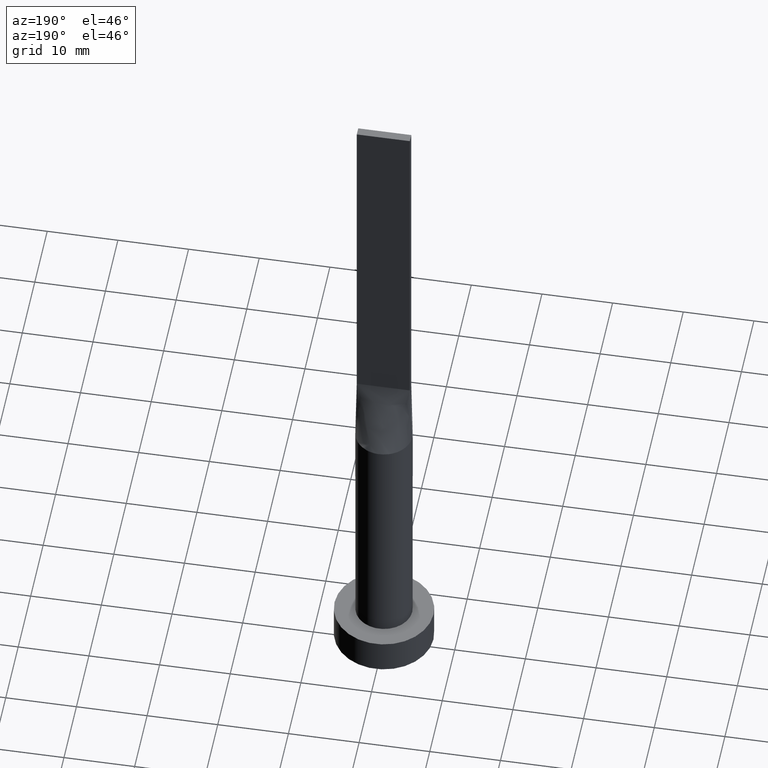
[diagram: clean part render]
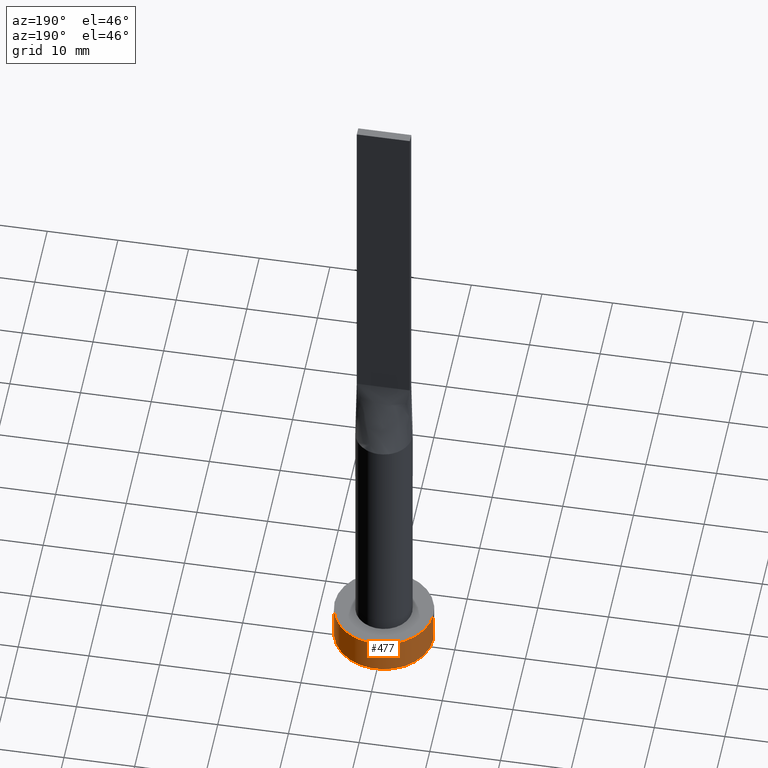
[diagram: same view with one face highlighted and labeled with its STEP entity id]
A machine part, auxiliary view. The second image highlights one B-rep face of the part: STEP entity #477.
In plain terms, the highlighted cylindrical surface (partial cylindrical patch) has radius 7 mm, axis along (-0, -0, -1).
Its self-contained STEP definition (entity closure, byte-faithful):
#15 = CIRCLE ( 'NONE', #56, 7.000000000000000000 ) ;
#16 = VERTEX_POINT ( 'NONE', #352 ) ;
#37 = CARTESIAN_POINT ( 'NONE',  ( 7.000000000000000000, 8.572527594031473190E-16, 0.000000000000000000 ) ) ;
#43 = AXIS2_PLACEMENT_3D ( 'NONE', #79, #415, #539 ) ;
#56 = AXIS2_PLACEMENT_3D ( 'NONE', #223, #271, #455 ) ;
#79 = CARTESIAN_POINT ( 'NONE',  ( 0.000000000000000000, 0.000000000000000000, 0.000000000000000000 ) ) ;
#95 = LINE ( 'NONE', #405, #373 ) ;
#111 = CARTESIAN_POINT ( 'NONE',  ( -7.000000000000000000, 0.000000000000000000, 5.000000000000000000 ) ) ;
#114 = CYLINDRICAL_SURFACE ( 'NONE', #262, 7.000000000000000000 ) ;
#157 = DIRECTION ( 'NONE',  ( -0.000000000000000000, -0.000000000000000000, -1.000000000000000000 ) ) ;
#160 = FACE_OUTER_BOUND ( 'NONE', #506, .T. ) ;
#161 = EDGE_CURVE ( 'NONE', #414, #556, #261, .T. ) ;
#201 = DIRECTION ( 'NONE',  ( -1.000000000000000000, 0.000000000000000000, 0.000000000000000000 ) ) ;
#203 = DIRECTION ( 'NONE',  ( -0.000000000000000000, -0.000000000000000000, -1.000000000000000000 ) ) ;
#223 = CARTESIAN_POINT ( 'NONE',  ( 0.000000000000000000, 0.000000000000000000, 5.000000000000000000 ) ) ;
#247 = ORIENTED_EDGE ( 'NONE', *, *, #546, .F. ) ;
#256 = CARTESIAN_POINT ( 'NONE',  ( 7.000000000000000000, 8.572527594031473190E-16, 5.000000000000000000 ) ) ;
#261 = CIRCLE ( 'NONE', #43, 7.000000000000000000 ) ;
#262 = AXIS2_PLACEMENT_3D ( 'NONE', #328, #203, #201 ) ;
#271 = DIRECTION ( 'NONE',  ( 0.000000000000000000, 0.000000000000000000, 1.000000000000000000 ) ) ;
#283 = ORIENTED_EDGE ( 'NONE', *, *, #384, .F. ) ;
#318 = DIRECTION ( 'NONE',  ( -0.000000000000000000, -0.000000000000000000, -1.000000000000000000 ) ) ;
#328 = CARTESIAN_POINT ( 'NONE',  ( 0.000000000000000000, 0.000000000000000000, 5.000000000000000000 ) ) ;
#352 = CARTESIAN_POINT ( 'NONE',  ( -7.000000000000000000, 0.000000000000000000, 5.000000000000000000 ) ) ;
#373 = VECTOR ( 'NONE', #318, 1000.000000000000000 ) ;
#384 = EDGE_CURVE ( 'NONE', #16, #556, #509, .T. ) ;
#405 = CARTESIAN_POINT ( 'NONE',  ( 7.000000000000000000, 8.572527594031473190E-16, 5.000000000000000000 ) ) ;
#412 = CARTESIAN_POINT ( 'NONE',  ( -7.000000000000000000, 0.000000000000000000, 0.000000000000000000 ) ) ;
#414 = VERTEX_POINT ( 'NONE', #37 ) ;
#415 = DIRECTION ( 'NONE',  ( 0.000000000000000000, 0.000000000000000000, 1.000000000000000000 ) ) ;
#455 = DIRECTION ( 'NONE',  ( 1.000000000000000000, 0.000000000000000000, 0.000000000000000000 ) ) ;
#458 = VERTEX_POINT ( 'NONE', #256 ) ;
#477 = ADVANCED_FACE ( 'NONE', ( #160 ), #114, .T. ) ;
#506 = EDGE_LOOP ( 'NONE', ( #247, #550, #526, #283 ) ) ;
#509 = LINE ( 'NONE', #111, #578 ) ;
#526 = ORIENTED_EDGE ( 'NONE', *, *, #161, .T. ) ;
#539 = DIRECTION ( 'NONE',  ( 1.000000000000000000, 0.000000000000000000, 0.000000000000000000 ) ) ;
#546 = EDGE_CURVE ( 'NONE', #458, #16, #15, .T. ) ;
#550 = ORIENTED_EDGE ( 'NONE', *, *, #580, .T. ) ;
#556 = VERTEX_POINT ( 'NONE', #412 ) ;
#578 = VECTOR ( 'NONE', #157, 1000.000000000000000 ) ;
#580 = EDGE_CURVE ( 'NONE', #458, #414, #95, .T. ) ;